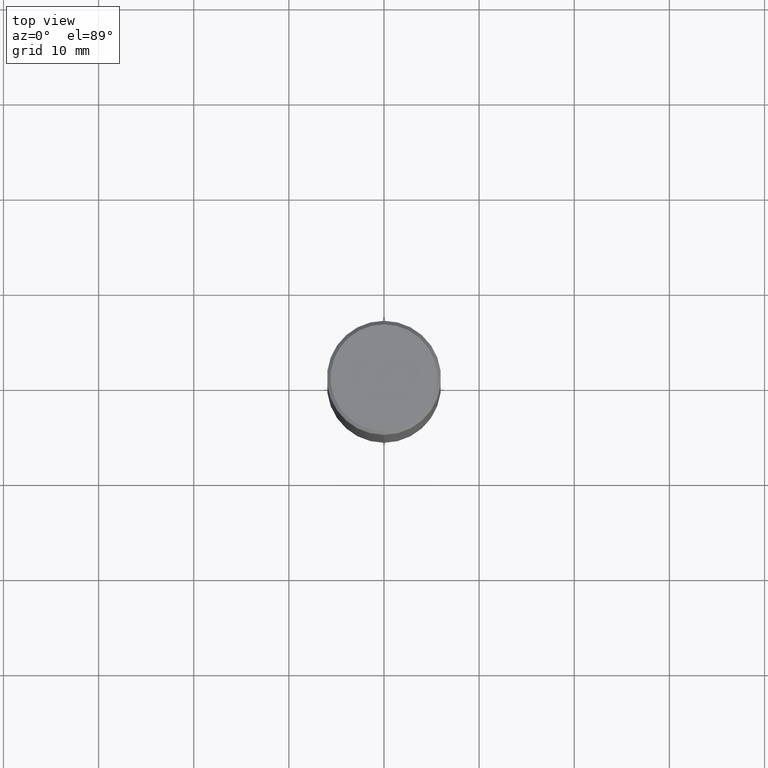
[diagram: clean part render]
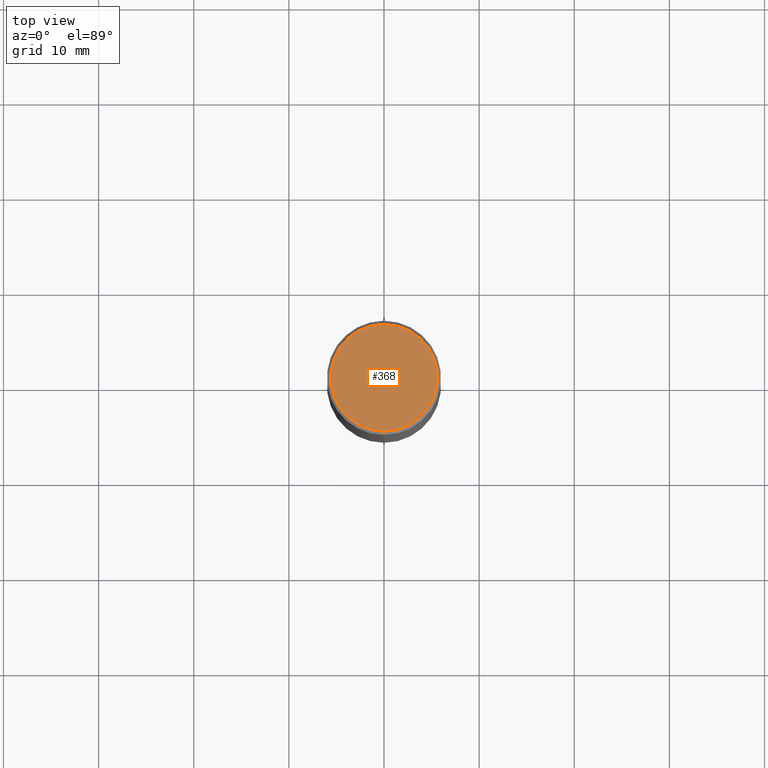
[diagram: same view with one face highlighted and labeled with its STEP entity id]
A machine part, top view. The second image highlights one B-rep face of the part: STEP entity #368.
In plain terms, the highlighted planar face has unit normal (0, -0, -1).
Its self-contained STEP definition (entity closure, byte-faithful):
#3 = DIRECTION ( 'NONE',  ( 6.982962677686265922E-15, 1.000000000000000000, -3.491744257847858312E-15 ) ) ;
#51 = FACE_OUTER_BOUND ( 'NONE', #103, .T. ) ;
#72 = VERTEX_POINT ( 'NONE', #471 ) ;
#86 = CIRCLE ( 'NONE', #321, 0.2211999999999999800 ) ;
#103 = EDGE_LOOP ( 'NONE', ( #279, #512 ) ) ;
#108 = DIRECTION ( 'NONE',  ( -2.445285210825420164E-29, 3.491744257847858312E-15, 1.000000000000000000 ) ) ;
#111 = DIRECTION ( 'NONE',  ( -6.982962677686266711E-15, -1.000000000000000000, 3.491744257847858312E-15 ) ) ;
#117 = AXIS2_PLACEMENT_3D ( 'NONE', #470, #466, #111 ) ;
#150 = CIRCLE ( 'NONE', #117, 0.2211999999999999800 ) ;
#171 = AXIS2_PLACEMENT_3D ( 'NONE', #409, #253, #3 ) ;
#189 = CARTESIAN_POINT ( 'NONE',  ( -1.568995892090348679E-15, -0.2211999999999999800, 8.327766115919414367E-16 ) ) ;
#245 = PLANE ( 'NONE',  #171 ) ;
#253 = DIRECTION ( 'NONE',  ( 2.445285210825419883E-29, -3.491744257847858312E-15, -1.000000000000000000 ) ) ;
#279 = ORIENTED_EDGE ( 'NONE', *, *, #298, .T. ) ;
#298 = EDGE_CURVE ( 'NONE', #72, #488, #150, .T. ) ;
#313 = DIRECTION ( 'NONE',  ( -6.982962677686266711E-15, -1.000000000000000000, 3.491744257847858312E-15 ) ) ;
#321 = AXIS2_PLACEMENT_3D ( 'NONE', #463, #108, #313 ) ;
#368 = ADVANCED_FACE ( 'NONE', ( #51 ), #245, .F. ) ;
#409 = CARTESIAN_POINT ( 'NONE',  ( 1.544631344304201972E-15, 0.2211999999999999800, -7.421724389579486086E-16 ) ) ;
#463 = CARTESIAN_POINT ( 'NONE',  ( -1.477020289206506650E-45, 2.109110663545337327E-31, 6.040278175599523926E-17 ) ) ;
#466 = DIRECTION ( 'NONE',  ( -2.445285210825420164E-29, 3.491744257847858312E-15, 1.000000000000000000 ) ) ;
#469 = EDGE_CURVE ( 'NONE', #488, #72, #86, .T. ) ;
#470 = CARTESIAN_POINT ( 'NONE',  ( -1.477020289206506650E-45, 2.109110663545337327E-31, 6.040278175599523926E-17 ) ) ;
#471 = CARTESIAN_POINT ( 'NONE',  ( 1.597003564386849249E-15, 0.2211999999999999800, -7.119710480799510321E-16 ) ) ;
#488 = VERTEX_POINT ( 'NONE', #189 ) ;
#512 = ORIENTED_EDGE ( 'NONE', *, *, #469, .T. ) ;